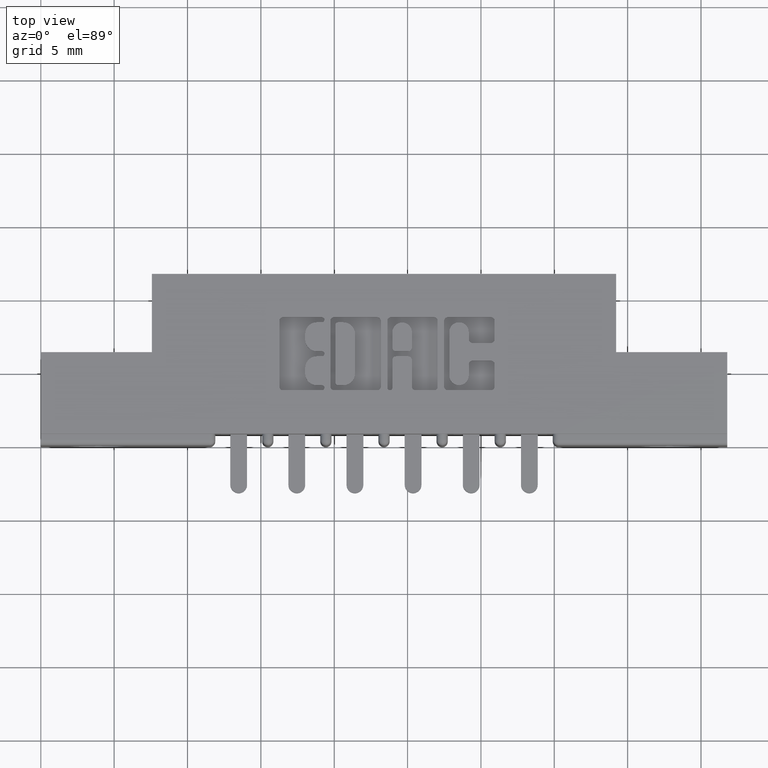
[diagram: clean part render]
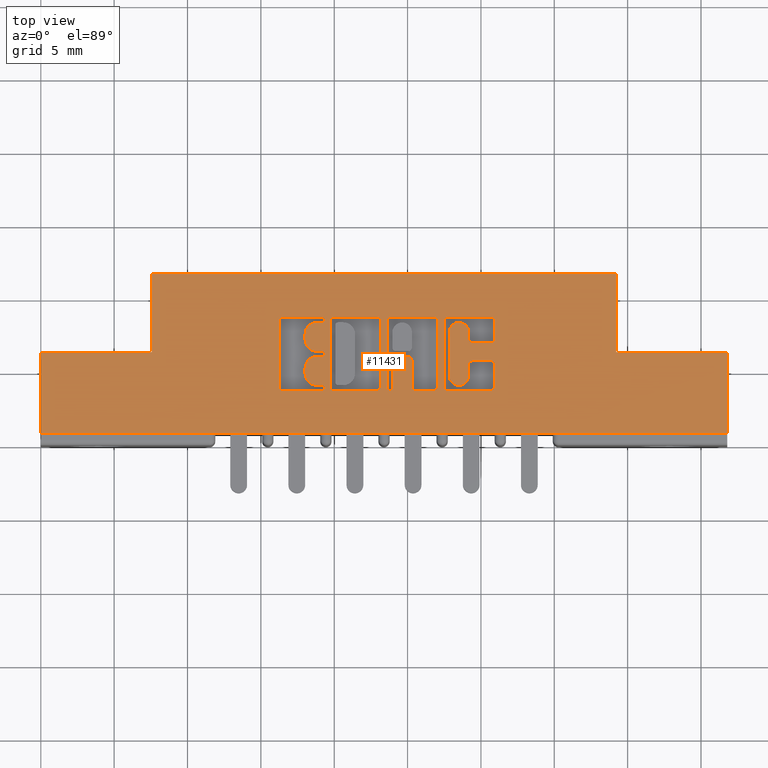
[diagram: same view with one face highlighted and labeled with its STEP entity id]
A machine part, top view. The second image highlights one B-rep face of the part: STEP entity #11431.
In plain terms, the highlighted planar face has unit normal (0, 0, -1).
Its self-contained STEP definition (entity closure, byte-faithful):
#7 = ORIENTED_EDGE ( 'NONE', *, *, #3846, .F. ) ;
#14 = CARTESIAN_POINT ( 'NONE',  ( 0.9295887114283308800, 0.0000000000000000000, 0.0000000000000000000 ) ) ;
#41 = DIRECTION ( 'NONE',  ( 1.000000000000000000, 0.0000000000000000000, 0.0000000000000000000 ) ) ;
#66 = DIRECTION ( 'NONE',  ( -0.0000000000000000000, 0.0000000000000000000, 1.000000000000000000 ) ) ;
#77 = CARTESIAN_POINT ( 'NONE',  ( 1.217678631909940200, 0.0000000000000000000, 0.0000000000000000000 ) ) ;
#79 = CIRCLE ( 'NONE', #5731, 0.006870969142663458500 ) ;
#95 = VERTEX_POINT ( 'NONE', #2452 ) ;
#141 = DIRECTION ( 'NONE',  ( -0.0000000000000000000, 0.0000000000000000000, 1.000000000000000000 ) ) ;
#149 = CIRCLE ( 'NONE', #2220, 0.006870969142657995000 ) ;
#185 = DIRECTION ( 'NONE',  ( -0.0000000000000000000, 1.000000000000000000, -0.0000000000000000000 ) ) ;
#192 = VERTEX_POINT ( 'NONE', #9067 ) ;
#208 = VERTEX_POINT ( 'NONE', #4517 ) ;
#212 = DIRECTION ( 'NONE',  ( -0.0000000000000000000, 0.0000000000000000000, 1.000000000000000000 ) ) ;
#223 = VERTEX_POINT ( 'NONE', #8171 ) ;
#260 = VECTOR ( 'NONE', #8532, 39.37007874015748100 ) ;
#267 = EDGE_CURVE ( 'NONE', #7013, #9898, #10006, .T. ) ;
#281 = LINE ( 'NONE', #7409, #3008 ) ;
#283 = CARTESIAN_POINT ( 'NONE',  ( 1.158293827176977400, 0.2842718973050482000, 0.0000000000000000000 ) ) ;
#286 = EDGE_CURVE ( 'NONE', #2917, #7035, #8710, .T. ) ;
#298 = DIRECTION ( 'NONE',  ( -0.0000000000000000000, 0.0000000000000000000, 1.000000000000000000 ) ) ;
#305 = EDGE_CURVE ( 'NONE', #9968, #3740, #8557, .T. ) ;
#307 = VERTEX_POINT ( 'NONE', #11163 ) ;
#312 = VECTOR ( 'NONE', #2948, 39.37007874015748100 ) ;
#317 = CARTESIAN_POINT ( 'NONE',  ( 0.7867707099630101300, 0.3338410318342131000, 0.0000000000000000000 ) ) ;
#339 = CARTESIAN_POINT ( 'NONE',  ( 1.095964321382818300, 0.1873421540424559900, 0.0000000000000000000 ) ) ;
#346 = CIRCLE ( 'NONE', #8905, 0.009815670203841039800 ) ;
#370 = EDGE_CURVE ( 'NONE', #2585, #5063, #10583, .T. ) ;
#441 = VECTOR ( 'NONE', #8253, 39.37007874015748100 ) ;
#444 = ORIENTED_EDGE ( 'NONE', *, *, #6518, .T. ) ;
#452 = EDGE_CURVE ( 'NONE', #11435, #2830, #1934, .T. ) ;
#453 = AXIS2_PLACEMENT_3D ( 'NONE', #10900, #785, #10939 ) ;
#457 = CARTESIAN_POINT ( 'NONE',  ( 0.7406370600050840000, 0.2386290308573598100, 0.0000000000000000000 ) ) ;
#487 = CARTESIAN_POINT ( 'NONE',  ( 1.217678631909940200, 0.1571589681657859800, 0.0000000000000000000 ) ) ;
#508 = CARTESIAN_POINT ( 'NONE',  ( 0.0000000000000000000, 0.03100000000000000000, 0.0000000000000000000 ) ) ;
#525 = EDGE_CURVE ( 'NONE', #8892, #5458, #1483, .T. ) ;
#558 = CARTESIAN_POINT ( 'NONE',  ( 0.7541336065353355700, 0.1542142671046509700, 0.0000000000000000000 ) ) ;
#559 = DIRECTION ( 'NONE',  ( -0.0000000000000000000, 0.0000000000000000000, 1.000000000000000000 ) ) ;
#564 = EDGE_LOOP ( 'NONE', ( #8621, #444, #7224, #6893, #3497, #11071, #5271, #4146 ) ) ;
#579 = AXIS2_PLACEMENT_3D ( 'NONE', #8164, #9978, #5477 ) ;
#591 = LINE ( 'NONE', #5654, #2455 ) ;
#611 = VECTOR ( 'NONE', #4443, 39.37007874015748100 ) ;
#621 = VECTOR ( 'NONE', #5131, 39.37007874015748100 ) ;
#646 = VECTOR ( 'NONE', #2903, 39.37007874015748100 ) ;
#679 = CARTESIAN_POINT ( 'NONE',  ( 0.0000000000000000000, 0.4600000000000000200, 0.0000000000000000000 ) ) ;
#692 = VECTOR ( 'NONE', #5812, 39.37007874015748100 ) ;
#693 = CARTESIAN_POINT ( 'NONE',  ( 0.2979999999999999900, 0.2500000000000000600, 0.0000000000000000000 ) ) ;
#703 = CARTESIAN_POINT ( 'NONE',  ( 1.092038053301299400, 0.3338410318342131000, 0.0000000000000000000 ) ) ;
#717 = PLANE ( 'NONE',  #6213 ) ;
#785 = DIRECTION ( 'NONE',  ( -0.0000000000000000000, 0.0000000000000000000, 1.000000000000000000 ) ) ;
#793 = ORIENTED_EDGE ( 'NONE', *, *, #1675, .T. ) ;
#814 = ORIENTED_EDGE ( 'NONE', *, *, #5527, .F. ) ;
#894 = EDGE_CURVE ( 'NONE', #1724, #6526, #5961, .T. ) ;
#932 = CARTESIAN_POINT ( 'NONE',  ( 1.148478156973165900, 0.2842718973050482000, 0.0000000000000000000 ) ) ;
#948 = EDGE_CURVE ( 'NONE', #3572, #1386, #11006, .T. ) ;
#949 = VERTEX_POINT ( 'NONE', #9185 ) ;
#973 = CARTESIAN_POINT ( 'NONE',  ( 0.7541336065353100300, 0.2455000000000233400, 0.0000000000000000000 ) ) ;
#986 = DIRECTION ( 'NONE',  ( 1.000000000000000000, 0.0000000000000000000, 0.0000000000000000000 ) ) ;
#1036 = LINE ( 'NONE', #2434, #8802 ) ;
#1050 = CARTESIAN_POINT ( 'NONE',  ( 1.544000000000000300, 0.2500000000000000600, 0.0000000000000000000 ) ) ;
#1058 = LINE ( 'NONE', #7890, #621 ) ;
#1076 = EDGE_CURVE ( 'NONE', #10978, #2389, #8396, .T. ) ;
#1090 = LINE ( 'NONE', #8418, #646 ) ;
#1095 = ORIENTED_EDGE ( 'NONE', *, *, #1076, .F. ) ;
#1118 = DIRECTION ( 'NONE',  ( -0.0000000000000000000, 0.0000000000000000000, 1.000000000000000000 ) ) ;
#1147 = EDGE_CURVE ( 'NONE', #6410, #11435, #5236, .T. ) ;
#1171 = CARTESIAN_POINT ( 'NONE',  ( 0.9025956183678279800, 0.3338410318342129300, 0.0000000000000000000 ) ) ;
#1180 = CARTESIAN_POINT ( 'NONE',  ( 0.0000000000000000000, 0.3436567020380357200, 0.0000000000000000000 ) ) ;
#1198 = VERTEX_POINT ( 'NONE', #8958 ) ;
#1242 = AXIS2_PLACEMENT_3D ( 'NONE', #1659, #4449, #2630 ) ;
#1263 = DIRECTION ( 'NONE',  ( 1.000000000000000000, 0.0000000000000000000, 0.0000000000000000000 ) ) ;
#1274 = CARTESIAN_POINT ( 'NONE',  ( 0.9295887114283308800, 0.1542142671046509700, 0.0000000000000000000 ) ) ;
#1297 = LINE ( 'NONE', #9686, #6927 ) ;
#1312 = ORIENTED_EDGE ( 'NONE', *, *, #9792, .F. ) ;
#1319 = VECTOR ( 'NONE', #2408, 39.37007874015748100 ) ;
#1359 = CARTESIAN_POINT ( 'NONE',  ( 1.122221239177992200, 0.3036578459575325900, 0.0000000000000000000 ) ) ;
#1371 = CARTESIAN_POINT ( 'NONE',  ( 0.9958444853039847300, 0.1571589681657908600, 0.0000000000000000000 ) ) ;
#1386 = VERTEX_POINT ( 'NONE', #8022 ) ;
#1436 = VERTEX_POINT ( 'NONE', #7196 ) ;
#1442 = EDGE_CURVE ( 'NONE', #4220, #2320, #5803, .T. ) ;
#1464 = FACE_OUTER_BOUND ( 'NONE', #564, .T. ) ;
#1483 = LINE ( 'NONE', #11795, #3649 ) ;
#1489 = CARTESIAN_POINT ( 'NONE',  ( 1.095964321382818300, 0.0000000000000000000, 0.0000000000000000000 ) ) ;
#1530 = CARTESIAN_POINT ( 'NONE',  ( 0.9433306497136468800, 0.1542142671046509700, 0.0000000000000000000 ) ) ;
#1532 = CARTESIAN_POINT ( 'NONE',  ( -1.915567620543396700E-014, 0.1610852362472235100, 0.0000000000000000000 ) ) ;
#1543 = VECTOR ( 'NONE', #3708, 39.37007874015748100 ) ;
#1609 = CARTESIAN_POINT ( 'NONE',  ( 0.6400264404161154500, 0.1571589681657929700, 0.0000000000000000000 ) ) ;
#1644 = VERTEX_POINT ( 'NONE', #5499 ) ;
#1659 = CARTESIAN_POINT ( 'NONE',  ( 0.9860288151001878100, 0.2288133606535557900, 0.0000000000000000000 ) ) ;
#1663 = VECTOR ( 'NONE', #5331, 39.37007874015748100 ) ;
#1675 = EDGE_CURVE ( 'NONE', #2348, #7220, #4801, .T. ) ;
#1691 = CIRCLE ( 'NONE', #2460, 0.009815670203804980100 ) ;
#1717 = VERTEX_POINT ( 'NONE', #9414 ) ;
#1724 = VERTEX_POINT ( 'NONE', #8386 ) ;
#1729 = ORIENTED_EDGE ( 'NONE', *, *, #11427, .F. ) ;
#1934 = LINE ( 'NONE', #9624, #9447 ) ;
#1984 = CARTESIAN_POINT ( 'NONE',  ( 1.082222383097458700, 0.0000000000000000000, 0.0000000000000000000 ) ) ;
#1989 = CIRCLE ( 'NONE', #4387, 0.009815670203811535700 ) ;
#2033 = EDGE_CURVE ( 'NONE', #8575, #6577, #9399, .T. ) ;
#2077 = CARTESIAN_POINT ( 'NONE',  ( 0.7406370600051095400, 0.1610852362473115800, 0.0000000000000000000 ) ) ;
#2086 = CARTESIAN_POINT ( 'NONE',  ( 0.7541336065353100300, 0.2455000000000233400, 0.0000000000000000000 ) ) ;
#2114 = CARTESIAN_POINT ( 'NONE',  ( 1.148478156973179000, 0.2170345564089716800, 0.0000000000000000000 ) ) ;
#2127 = DIRECTION ( 'NONE',  ( 1.000000000000000000, 0.0000000000000000000, 0.0000000000000000000 ) ) ;
#2140 = DIRECTION ( 'NONE',  ( 1.000000000000000000, 0.0000000000000000000, 0.0000000000000000000 ) ) ;
#2142 = EDGE_CURVE ( 'NONE', #1644, #2244, #9099, .T. ) ;
#2199 = DIRECTION ( 'NONE',  ( -0.0000000000000000000, 0.0000000000000000000, 1.000000000000000000 ) ) ;
#2220 = AXIS2_PLACEMENT_3D ( 'NONE', #5580, #66, #986 ) ;
#2227 = VECTOR ( 'NONE', #8292, 39.37007874015748100 ) ;
#2244 = VERTEX_POINT ( 'NONE', #10467 ) ;
#2252 = VECTOR ( 'NONE', #185, 39.37007874015748100 ) ;
#2270 = LINE ( 'NONE', #2715, #1543 ) ;
#2320 = VERTEX_POINT ( 'NONE', #6800 ) ;
#2333 = AXIS2_PLACEMENT_3D ( 'NONE', #9392, #3775, #5636 ) ;
#2348 = VERTEX_POINT ( 'NONE', #1274 ) ;
#2360 = AXIS2_PLACEMENT_3D ( 'NONE', #8558, #1118, #1263 ) ;
#2389 = VERTEX_POINT ( 'NONE', #5919 ) ;
#2393 = DIRECTION ( 'NONE',  ( -0.0000000000000000000, 0.0000000000000000000, 1.000000000000000000 ) ) ;
#2408 = DIRECTION ( 'NONE',  ( 1.000000000000000000, 0.0000000000000000000, 0.0000000000000000000 ) ) ;
#2422 = LINE ( 'NONE', #5732, #692 ) ;
#2426 = ORIENTED_EDGE ( 'NONE', *, *, #8911, .T. ) ;
#2434 = CARTESIAN_POINT ( 'NONE',  ( 0.6400264404161154500, 0.0000000000000000000, 0.0000000000000000000 ) ) ;
#2452 = CARTESIAN_POINT ( 'NONE',  ( 0.7610045756779734200, 0.2455000000000233400, 0.0000000000000000000 ) ) ;
#2455 = VECTOR ( 'NONE', #3715, 39.37007874015748100 ) ;
#2460 = AXIS2_PLACEMENT_3D ( 'NONE', #8403, #2887, #3816 ) ;
#2473 = CARTESIAN_POINT ( 'NONE',  ( 1.092038053301265200, 0.1473432979619861700, 0.0000000000000000000 ) ) ;
#2506 = CARTESIAN_POINT ( 'NONE',  ( 0.2979999999999999900, 0.4600000000000000200, 0.0000000000000000000 ) ) ;
#2513 = ORIENTED_EDGE ( 'NONE', *, *, #2840, .F. ) ;
#2514 = DIRECTION ( 'NONE',  ( 0.0000000000000000000, -1.000000000000000000, 0.0000000000000000000 ) ) ;
#2532 = EDGE_CURVE ( 'NONE', #9653, #3152, #8801, .T. ) ;
#2585 = VERTEX_POINT ( 'NONE', #5692 ) ;
#2599 = CARTESIAN_POINT ( 'NONE',  ( -0.0000000000000000000, 0.1473432979619861700, 0.0000000000000000000 ) ) ;
#2603 = ORIENTED_EDGE ( 'NONE', *, *, #11266, .F. ) ;
#2630 = DIRECTION ( 'NONE',  ( 1.000000000000000000, 0.0000000000000000000, 0.0000000000000000000 ) ) ;
#2715 = CARTESIAN_POINT ( 'NONE',  ( 1.148478156973179000, 0.0000000000000000000, 0.0000000000000000000 ) ) ;
#2759 = DIRECTION ( 'NONE',  ( 1.000000000000000000, 0.0000000000000000000, 0.0000000000000000000 ) ) ;
#2779 = ORIENTED_EDGE ( 'NONE', *, *, #5840, .F. ) ;
#2830 = VERTEX_POINT ( 'NONE', #4192 ) ;
#2840 = EDGE_CURVE ( 'NONE', #8463, #6896, #1058, .T. ) ;
#2852 = ORIENTED_EDGE ( 'NONE', *, *, #948, .F. ) ;
#2857 = AXIS2_PLACEMENT_3D ( 'NONE', #703, #9884, #3398 ) ;
#2874 = CARTESIAN_POINT ( 'NONE',  ( 0.7406370600050840000, 0.2837811137948613200, 0.0000000000000000000 ) ) ;
#2885 = AXIS2_PLACEMENT_3D ( 'NONE', #11097, #141, #2759 ) ;
#2887 = DIRECTION ( 'NONE',  ( -0.0000000000000000000, 0.0000000000000000000, 1.000000000000000000 ) ) ;
#2903 = DIRECTION ( 'NONE',  ( 0.0000000000000000000, 1.000000000000000000, -0.0000000000000000000 ) ) ;
#2917 = VERTEX_POINT ( 'NONE', #8668 ) ;
#2946 = DIRECTION ( 'NONE',  ( 1.000000000000000000, 0.0000000000000000000, 0.0000000000000000000 ) ) ;
#2948 = DIRECTION ( 'NONE',  ( -1.000000000000000000, 0.0000000000000000000, 0.0000000000000000000 ) ) ;
#2949 = EDGE_CURVE ( 'NONE', #1198, #5447, #4660, .T. ) ;
#2951 = ORIENTED_EDGE ( 'NONE', *, *, #3744, .F. ) ;
#3008 = VECTOR ( 'NONE', #3527, 39.37007874015748100 ) ;
#3017 = EDGE_CURVE ( 'NONE', #6710, #7459, #7951, .T. ) ;
#3030 = VECTOR ( 'NONE', #6080, 39.37007874015748100 ) ;
#3043 = CARTESIAN_POINT ( 'NONE',  ( 1.055229290037010600, 0.1571589681657838100, 0.0000000000000000000 ) ) ;
#3045 = CARTESIAN_POINT ( 'NONE',  ( 1.544000000000000300, 0.2500000000000000600, 0.0000000000000000000 ) ) ;
#3056 = CARTESIAN_POINT ( 'NONE',  ( 0.9025956183678620600, 0.1571589681657929700, 0.0000000000000000000 ) ) ;
#3105 = VERTEX_POINT ( 'NONE', #5587 ) ;
#3111 = DIRECTION ( 'NONE',  ( -0.0000000000000000000, 0.0000000000000000000, 1.000000000000000000 ) ) ;
#3152 = VERTEX_POINT ( 'NONE', #2114 ) ;
#3188 = EDGE_CURVE ( 'NONE', #4220, #5458, #4211, .T. ) ;
#3208 = ORIENTED_EDGE ( 'NONE', *, *, #2033, .F. ) ;
#3272 = ORIENTED_EDGE ( 'NONE', *, *, #6162, .T. ) ;
#3313 = DIRECTION ( 'NONE',  ( 1.000000000000000000, 0.0000000000000000000, 0.0000000000000000000 ) ) ;
#3321 = CARTESIAN_POINT ( 'NONE',  ( 0.9433306497136468800, 0.2288133606535486000, 0.0000000000000000000 ) ) ;
#3328 = DIRECTION ( 'NONE',  ( -0.0000000000000000000, 0.0000000000000000000, 1.000000000000000000 ) ) ;
#3335 = VERTEX_POINT ( 'NONE', #10036 ) ;
#3338 = VECTOR ( 'NONE', #4409, 39.37007874015748100 ) ;
#3384 = CARTESIAN_POINT ( 'NONE',  ( 0.0000000000000000000, 0.3436567020380540400, 0.0000000000000000000 ) ) ;
#3388 = VERTEX_POINT ( 'NONE', #10075 ) ;
#3398 = DIRECTION ( 'NONE',  ( 1.000000000000000000, 0.0000000000000000000, 0.0000000000000000000 ) ) ;
#3443 = LINE ( 'NONE', #3646, #441 ) ;
#3459 = AXIS2_PLACEMENT_3D ( 'NONE', #9310, #8367, #4684 ) ;
#3494 = AXIS2_PLACEMENT_3D ( 'NONE', #5162, #5043, #10588 ) ;
#3497 = ORIENTED_EDGE ( 'NONE', *, *, #10275, .F. ) ;
#3527 = DIRECTION ( 'NONE',  ( 1.000000000000000000, 0.0000000000000000000, 0.0000000000000000000 ) ) ;
#3540 = VECTOR ( 'NONE', #6664, 39.37007874015748100 ) ;
#3570 = CARTESIAN_POINT ( 'NONE',  ( 0.7541336065353512200, 0.3367857328953892100, 0.0000000000000000000 ) ) ;
#3572 = VERTEX_POINT ( 'NONE', #9480 ) ;
#3635 = EDGE_CURVE ( 'NONE', #6896, #1717, #9681, .T. ) ;
#3636 = VECTOR ( 'NONE', #8080, 39.37007874015748100 ) ;
#3646 = CARTESIAN_POINT ( 'NONE',  ( 0.0000000000000000000, 0.2523709691426868100, 0.0000000000000000000 ) ) ;
#3649 = VECTOR ( 'NONE', #4452, 39.37007874015748100 ) ;
#3663 = CIRCLE ( 'NONE', #1242, 0.009815670203796920600 ) ;
#3684 = CARTESIAN_POINT ( 'NONE',  ( 1.082222383097458700, 0.3338410318342131000, 0.0000000000000000000 ) ) ;
#3696 = DIRECTION ( 'NONE',  ( 0.0000000000000000000, -1.000000000000000000, 0.0000000000000000000 ) ) ;
#3702 = EDGE_CURVE ( 'NONE', #10386, #223, #4494, .T. ) ;
#3705 = CARTESIAN_POINT ( 'NONE',  ( -0.0000000000000000000, 0.2386290308573598100, 0.0000000000000000000 ) ) ;
#3708 = DIRECTION ( 'NONE',  ( 0.0000000000000000000, -1.000000000000000000, 0.0000000000000000000 ) ) ;
#3715 = DIRECTION ( 'NONE',  ( 1.000000000000000000, 0.0000000000000000000, 0.0000000000000000000 ) ) ;
#3736 = EDGE_CURVE ( 'NONE', #9981, #6710, #7793, .T. ) ;
#3740 = VERTEX_POINT ( 'NONE', #2473 ) ;
#3744 = EDGE_CURVE ( 'NONE', #5063, #5298, #1036, .T. ) ;
#3775 = DIRECTION ( 'NONE',  ( -0.0000000000000000000, 0.0000000000000000000, 1.000000000000000000 ) ) ;
#3778 = FACE_BOUND ( 'NONE', #9187, .T. ) ;
#3809 = DIRECTION ( 'NONE',  ( 0.0000000000000000000, 1.000000000000000000, -0.0000000000000000000 ) ) ;
#3816 = DIRECTION ( 'NONE',  ( 1.000000000000000000, 0.0000000000000000000, 0.0000000000000000000 ) ) ;
#3817 = VECTOR ( 'NONE', #8891, 39.37007874015748100 ) ;
#3822 = ORIENTED_EDGE ( 'NONE', *, *, #11414, .F. ) ;
#3846 = EDGE_CURVE ( 'NONE', #8892, #7220, #4063, .T. ) ;
#3847 = VERTEX_POINT ( 'NONE', #7273 ) ;
#3912 = LINE ( 'NONE', #1180, #312 ) ;
#3939 = CARTESIAN_POINT ( 'NONE',  ( 1.544000000000000300, 0.4600000000000000200, 0.0000000000000000000 ) ) ;
#3940 = CARTESIAN_POINT ( 'NONE',  ( 1.148478156973165900, 0.3036578454992628900, 0.0000000000000000000 ) ) ;
#3951 = DIRECTION ( 'NONE',  ( -0.0000000000000000000, 0.0000000000000000000, 1.000000000000000000 ) ) ;
#3972 = EDGE_CURVE ( 'NONE', #1436, #3388, #591, .T. ) ;
#3975 = ORIENTED_EDGE ( 'NONE', *, *, #305, .F. ) ;
#4042 = CARTESIAN_POINT ( 'NONE',  ( 0.7867707099629760400, 0.1571589681657929700, 0.0000000000000000000 ) ) ;
#4063 = CIRCLE ( 'NONE', #453, 0.009815670203796511200 ) ;
#4068 = CARTESIAN_POINT ( 'NONE',  ( 0.7769550397591692400, 0.1571589681657929700, 0.0000000000000000000 ) ) ;
#4076 = VECTOR ( 'NONE', #10294, 39.37007874015748100 ) ;
#4087 = VERTEX_POINT ( 'NONE', #7626 ) ;
#4104 = DIRECTION ( 'NONE',  ( -0.0000000000000000000, -1.000000000000000000, -0.0000000000000000000 ) ) ;
#4116 = ORIENTED_EDGE ( 'NONE', *, *, #525, .T. ) ;
#4142 = EDGE_CURVE ( 'NONE', #1386, #2585, #3912, .T. ) ;
#4144 = VERTEX_POINT ( 'NONE', #10370 ) ;
#4146 = ORIENTED_EDGE ( 'NONE', *, *, #452, .F. ) ;
#4174 = AXIS2_PLACEMENT_3D ( 'NONE', #2874, #6581, #8421 ) ;
#4175 = ORIENTED_EDGE ( 'NONE', *, *, #10154, .F. ) ;
#4192 = CARTESIAN_POINT ( 'NONE',  ( 1.842000000000000100, 0.03100000000000000000, 0.0000000000000000000 ) ) ;
#4202 = CARTESIAN_POINT ( 'NONE',  ( 1.148478156973179000, 0.1873421540424559900, 0.0000000000000000000 ) ) ;
#4211 = CIRCLE ( 'NONE', #2360, 0.009815670203795690700 ) ;
#4214 = CARTESIAN_POINT ( 'NONE',  ( 0.0000000000000000000, 0.1473432979619875800, 0.0000000000000000000 ) ) ;
#4220 = VERTEX_POINT ( 'NONE', #8824 ) ;
#4239 = AXIS2_PLACEMENT_3D ( 'NONE', #3056, #5849, #6739 ) ;
#4250 = ORIENTED_EDGE ( 'NONE', *, *, #11506, .F. ) ;
#4261 = DIRECTION ( 'NONE',  ( 0.0000000000000000000, 0.0000000000000000000, -1.000000000000000000 ) ) ;
#4275 = LINE ( 'NONE', #2599, #8596 ) ;
#4294 = EDGE_CURVE ( 'NONE', #2830, #7035, #1297, .T. ) ;
#4387 = AXIS2_PLACEMENT_3D ( 'NONE', #283, #4839, #11246 ) ;
#4409 = DIRECTION ( 'NONE',  ( 0.0000000000000000000, -1.000000000000000000, 0.0000000000000000000 ) ) ;
#4443 = DIRECTION ( 'NONE',  ( -1.000000000000000000, 0.0000000000000000000, 0.0000000000000000000 ) ) ;
#4449 = DIRECTION ( 'NONE',  ( -0.0000000000000000000, 0.0000000000000000000, 1.000000000000000000 ) ) ;
#4452 = DIRECTION ( 'NONE',  ( 1.000000000000000000, 0.0000000000000000000, 0.0000000000000000000 ) ) ;
#4494 = CIRCLE ( 'NONE', #5841, 0.009815670203787086500 ) ;
#4517 = CARTESIAN_POINT ( 'NONE',  ( 1.055229290037010600, 0.1473432979619875800, 0.0000000000000000000 ) ) ;
#4520 = AXIS2_PLACEMENT_3D ( 'NONE', #317, #3111, #11399 ) ;
#4660 = LINE ( 'NONE', #3384, #611 ) ;
#4684 = DIRECTION ( 'NONE',  ( 1.000000000000000000, 0.0000000000000000000, 0.0000000000000000000 ) ) ;
#4727 = VERTEX_POINT ( 'NONE', #10827 ) ;
#4801 = LINE ( 'NONE', #14, #8970 ) ;
#4807 = CARTESIAN_POINT ( 'NONE',  ( 1.005660155507788000, 0.1571589681657908600, 0.0000000000000000000 ) ) ;
#4835 = EDGE_CURVE ( 'NONE', #8430, #4087, #3443, .T. ) ;
#4839 = DIRECTION ( 'NONE',  ( -0.0000000000000000000, 0.0000000000000000000, 1.000000000000000000 ) ) ;
#4842 = EDGE_CURVE ( 'NONE', #3847, #9668, #281, .T. ) ;
#4873 = CARTESIAN_POINT ( 'NONE',  ( 0.9958444853039847300, 0.0000000000000000000, 0.0000000000000000000 ) ) ;
#4917 = ORIENTED_EDGE ( 'NONE', *, *, #4842, .F. ) ;
#4923 = LINE ( 'NONE', #6673, #11114 ) ;
#4938 = DIRECTION ( 'NONE',  ( 1.000000000000000000, 0.0000000000000000000, 0.0000000000000000000 ) ) ;
#4939 = CARTESIAN_POINT ( 'NONE',  ( 0.9394043816321274700, 0.3436567020380095800, 0.0000000000000000000 ) ) ;
#4995 = ORIENTED_EDGE ( 'NONE', *, *, #2532, .F. ) ;
#5030 = ORIENTED_EDGE ( 'NONE', *, *, #1442, .T. ) ;
#5038 = DIRECTION ( 'NONE',  ( 1.000000000000000000, 0.0000000000000000000, 0.0000000000000000000 ) ) ;
#5043 = DIRECTION ( 'NONE',  ( -0.0000000000000000000, 0.0000000000000000000, 1.000000000000000000 ) ) ;
#5046 = EDGE_CURVE ( 'NONE', #5298, #8463, #10211, .T. ) ;
#5050 = AXIS2_PLACEMENT_3D ( 'NONE', #3570, #6368, #11853 ) ;
#5063 = VERTEX_POINT ( 'NONE', #6747 ) ;
#5131 = DIRECTION ( 'NONE',  ( 1.000000000000000000, 6.876017002796124400E-015, 0.0000000000000000000 ) ) ;
#5147 = ORIENTED_EDGE ( 'NONE', *, *, #9498, .F. ) ;
#5154 = CARTESIAN_POINT ( 'NONE',  ( 0.6498421106199185900, 0.1473432979619879700, 0.0000000000000000000 ) ) ;
#5162 = CARTESIAN_POINT ( 'NONE',  ( 0.7541336065353512200, 0.3367857328953892100, 0.0000000000000000000 ) ) ;
#5210 = CARTESIAN_POINT ( 'NONE',  ( 1.217678631909972200, 0.0000000000000000000, 0.0000000000000000000 ) ) ;
#5236 = LINE ( 'NONE', #8290, #9559 ) ;
#5271 = ORIENTED_EDGE ( 'NONE', *, *, #4294, .F. ) ;
#5279 = DIRECTION ( 'NONE',  ( -0.0000000000000000000, 0.0000000000000000000, 1.000000000000000000 ) ) ;
#5280 = ORIENTED_EDGE ( 'NONE', *, *, #11219, .F. ) ;
#5298 = VERTEX_POINT ( 'NONE', #1609 ) ;
#5307 = ORIENTED_EDGE ( 'NONE', *, *, #9048, .T. ) ;
#5331 = DIRECTION ( 'NONE',  ( 0.0000000000000000000, 1.000000000000000000, -0.0000000000000000000 ) ) ;
#5447 = VERTEX_POINT ( 'NONE', #8276 ) ;
#5458 = VERTEX_POINT ( 'NONE', #11916 ) ;
#5477 = DIRECTION ( 'NONE',  ( 1.000000000000000000, 0.0000000000000000000, 0.0000000000000000000 ) ) ;
#5499 = CARTESIAN_POINT ( 'NONE',  ( 0.7406370600051254100, 0.3299147637527386500, 0.0000000000000000000 ) ) ;
#5527 = EDGE_CURVE ( 'NONE', #2348, #7459, #149, .T. ) ;
#5580 = CARTESIAN_POINT ( 'NONE',  ( 0.9364596805709870500, 0.1542142671046509700, 0.0000000000000000000 ) ) ;
#5587 = CARTESIAN_POINT ( 'NONE',  ( 0.7541336064153888500, 0.2386290308573598100, 0.0000000000000000000 ) ) ;
#5590 = ORIENTED_EDGE ( 'NONE', *, *, #370, .F. ) ;
#5597 = DIRECTION ( 'NONE',  ( -0.0000000000000000000, -1.000000000000000000, -0.0000000000000000000 ) ) ;
#5601 = DIRECTION ( 'NONE',  ( -0.0000000000000000000, 0.0000000000000000000, 1.000000000000000000 ) ) ;
#5636 = DIRECTION ( 'NONE',  ( 1.000000000000000000, 0.0000000000000000000, 0.0000000000000000000 ) ) ;
#5640 = CARTESIAN_POINT ( 'NONE',  ( 0.7406370600051254100, 0.2985046191005228400, 0.0000000000000000000 ) ) ;
#5646 = ORIENTED_EDGE ( 'NONE', *, *, #3635, .F. ) ;
#5654 = CARTESIAN_POINT ( 'NONE',  ( -0.0000000000000000000, 0.1473432979619861700, 0.0000000000000000000 ) ) ;
#5657 = AXIS2_PLACEMENT_3D ( 'NONE', #7090, #5279, #7136 ) ;
#5662 = CIRCLE ( 'NONE', #9890, 0.009815670203796237100 ) ;
#5686 = VECTOR ( 'NONE', #5597, 39.37007874015748100 ) ;
#5691 = CARTESIAN_POINT ( 'NONE',  ( 0.2979999999999999900, 0.2500000000000000600, 0.0000000000000000000 ) ) ;
#5692 = CARTESIAN_POINT ( 'NONE',  ( 0.6498421106199380200, 0.3436567020380357200, 0.0000000000000000000 ) ) ;
#5703 = LINE ( 'NONE', #3705, #7285 ) ;
#5713 = ORIENTED_EDGE ( 'NONE', *, *, #10048, .F. ) ;
#5731 = AXIS2_PLACEMENT_3D ( 'NONE', #973, #5601, #8495 ) ;
#5732 = CARTESIAN_POINT ( 'NONE',  ( 0.0000000000000000000, 0.3436567020380540400, 0.0000000000000000000 ) ) ;
#5785 = LINE ( 'NONE', #4873, #3030 ) ;
#5803 = LINE ( 'NONE', #8104, #3338 ) ;
#5812 = DIRECTION ( 'NONE',  ( -1.000000000000000000, 0.0000000000000000000, 0.0000000000000000000 ) ) ;
#5823 = EDGE_CURVE ( 'NONE', #6312, #11929, #9650, .T. ) ;
#5840 = EDGE_CURVE ( 'NONE', #9590, #11402, #9366, .T. ) ;
#5841 = AXIS2_PLACEMENT_3D ( 'NONE', #6795, #2199, #10494 ) ;
#5844 = DIRECTION ( 'NONE',  ( -0.0000000000000000000, 0.0000000000000000000, 1.000000000000000000 ) ) ;
#5849 = DIRECTION ( 'NONE',  ( -0.0000000000000000000, 0.0000000000000000000, 1.000000000000000000 ) ) ;
#5874 = CARTESIAN_POINT ( 'NONE',  ( 0.7541336065353100300, 0.2523709691426868100, 0.0000000000000000000 ) ) ;
#5879 = ORIENTED_EDGE ( 'NONE', *, *, #6136, .F. ) ;
#5883 = VERTEX_POINT ( 'NONE', #2506 ) ;
#5904 = VERTEX_POINT ( 'NONE', #11872 ) ;
#5919 = CARTESIAN_POINT ( 'NONE',  ( 1.207862961706168200, 0.3436567020380540400, 0.0000000000000000000 ) ) ;
#5935 = ORIENTED_EDGE ( 'NONE', *, *, #8828, .F. ) ;
#5953 = FACE_BOUND ( 'NONE', #11004, .T. ) ;
#5961 = CIRCLE ( 'NONE', #5657, 0.009815670203806345400 ) ;
#6010 = EDGE_CURVE ( 'NONE', #3152, #9181, #2270, .T. ) ;
#6016 = LINE ( 'NONE', #11264, #3540 ) ;
#6080 = DIRECTION ( 'NONE',  ( 0.0000000000000000000, 1.000000000000000000, -0.0000000000000000000 ) ) ;
#6095 = AXIS2_PLACEMENT_3D ( 'NONE', #10447, #11391, #4938 ) ;
#6134 = VERTEX_POINT ( 'NONE', #9371 ) ;
#6136 = EDGE_CURVE ( 'NONE', #2389, #10381, #2422, .T. ) ;
#6162 = EDGE_CURVE ( 'NONE', #9590, #9181, #11076, .T. ) ;
#6163 = CARTESIAN_POINT ( 'NONE',  ( 1.217678631909940200, 0.2170345564089734300, 0.0000000000000000000 ) ) ;
#6203 = DIRECTION ( 'NONE',  ( -1.000000000000000000, 0.0000000000000000000, 0.0000000000000000000 ) ) ;
#6208 = ORIENTED_EDGE ( 'NONE', *, *, #4835, .F. ) ;
#6213 = AXIS2_PLACEMENT_3D ( 'NONE', #679, #4261, #7133 ) ;
#6231 = CARTESIAN_POINT ( 'NONE',  ( 0.9295887114283308800, 0.3338410318342131000, 0.0000000000000000000 ) ) ;
#6239 = LINE ( 'NONE', #7046, #1319 ) ;
#6279 = ORIENTED_EDGE ( 'NONE', *, *, #6777, .T. ) ;
#6306 = DIRECTION ( 'NONE',  ( -1.000000000000000000, -1.189163988687022500E-013, 0.0000000000000000000 ) ) ;
#6312 = VERTEX_POINT ( 'NONE', #9864 ) ;
#6319 = CARTESIAN_POINT ( 'NONE',  ( -8.177847276076924400E-015, 0.2386290308573189900, 0.0000000000000000000 ) ) ;
#6339 = AXIS2_PLACEMENT_3D ( 'NONE', #558, #7992, #10699 ) ;
#6368 = DIRECTION ( 'NONE',  ( -0.0000000000000000000, 0.0000000000000000000, 1.000000000000000000 ) ) ;
#6410 = VERTEX_POINT ( 'NONE', #3045 ) ;
#6423 = CIRCLE ( 'NONE', #8812, 0.009815670203803340800 ) ;
#6430 = ORIENTED_EDGE ( 'NONE', *, *, #7219, .F. ) ;
#6436 = CIRCLE ( 'NONE', #7134, 0.009815670203806754800 ) ;
#6448 = EDGE_CURVE ( 'NONE', #9898, #3847, #1989, .T. ) ;
#6499 = CARTESIAN_POINT ( 'NONE',  ( 0.7769550397591692400, 0.0000000000000000000, 0.0000000000000000000 ) ) ;
#6518 = EDGE_CURVE ( 'NONE', #6410, #11826, #9352, .T. ) ;
#6526 = VERTEX_POINT ( 'NONE', #487 ) ;
#6569 = ORIENTED_EDGE ( 'NONE', *, *, #3188, .F. ) ;
#6577 = VERTEX_POINT ( 'NONE', #4068 ) ;
#6581 = DIRECTION ( 'NONE',  ( -0.0000000000000000000, 0.0000000000000000000, 1.000000000000000000 ) ) ;
#6582 = AXIS2_PLACEMENT_3D ( 'NONE', #2086, #7722, #2127 ) ;
#6596 = CIRCLE ( 'NONE', #6339, 0.006870969142662229500 ) ;
#6646 = CARTESIAN_POINT ( 'NONE',  ( 0.7541336064154143800, 0.1473432979619887000, 0.0000000000000000000 ) ) ;
#6651 = VERTEX_POINT ( 'NONE', #11610 ) ;
#6664 = DIRECTION ( 'NONE',  ( 1.000000000000000000, 0.0000000000000000000, 0.0000000000000000000 ) ) ;
#6673 = CARTESIAN_POINT ( 'NONE',  ( 0.7092269153529278100, 0.0000000000000000000, 0.0000000000000000000 ) ) ;
#6680 = EDGE_CURVE ( 'NONE', #208, #6771, #9625, .T. ) ;
#6696 = EDGE_CURVE ( 'NONE', #1717, #6312, #6596, .T. ) ;
#6710 = VERTEX_POINT ( 'NONE', #3321 ) ;
#6730 = DIRECTION ( 'NONE',  ( 1.000000000000000000, 0.0000000000000000000, 0.0000000000000000000 ) ) ;
#6739 = DIRECTION ( 'NONE',  ( 1.000000000000000000, 0.0000000000000000000, 0.0000000000000000000 ) ) ;
#6747 = CARTESIAN_POINT ( 'NONE',  ( 0.6400264404161154500, 0.3338410318342131000, 0.0000000000000000000 ) ) ;
#6771 = VERTEX_POINT ( 'NONE', #7448 ) ;
#6777 = EDGE_CURVE ( 'NONE', #5904, #9981, #10192, .T. ) ;
#6784 = ORIENTED_EDGE ( 'NONE', *, *, #9016, .T. ) ;
#6795 = CARTESIAN_POINT ( 'NONE',  ( 1.207862961706153100, 0.2170345564089734300, 0.0000000000000000000 ) ) ;
#6800 = CARTESIAN_POINT ( 'NONE',  ( 1.065044960240806700, 0.1571589681657838100, 0.0000000000000000000 ) ) ;
#6805 = VECTOR ( 'NONE', #10293, 39.37007874015748100 ) ;
#6822 = EDGE_CURVE ( 'NONE', #9668, #192, #1691, .T. ) ;
#6877 = VECTOR ( 'NONE', #11155, 39.37007874015748100 ) ;
#6893 = ORIENTED_EDGE ( 'NONE', *, *, #9420, .F. ) ;
#6896 = VERTEX_POINT ( 'NONE', #6646 ) ;
#6927 = VECTOR ( 'NONE', #11553, 39.37007874015748100 ) ;
#7010 = ORIENTED_EDGE ( 'NONE', *, *, #9390, .F. ) ;
#7013 = VERTEX_POINT ( 'NONE', #3940 ) ;
#7035 = VERTEX_POINT ( 'NONE', #508 ) ;
#7041 = CARTESIAN_POINT ( 'NONE',  ( 0.7406370600050840000, 0.2072188862052035400, 0.0000000000000000000 ) ) ;
#7046 = CARTESIAN_POINT ( 'NONE',  ( -0.0000000000000000000, 0.3299147637527386500, 0.0000000000000000000 ) ) ;
#7086 = CARTESIAN_POINT ( 'NONE',  ( 0.7092269153529094900, 0.0000000000000000000, 0.0000000000000000000 ) ) ;
#7090 = CARTESIAN_POINT ( 'NONE',  ( 1.207862961706134300, 0.1571589681657929700, 0.0000000000000000000 ) ) ;
#7133 = DIRECTION ( 'NONE',  ( -1.000000000000000000, 0.0000000000000000000, -0.0000000000000000000 ) ) ;
#7134 = AXIS2_PLACEMENT_3D ( 'NONE', #4042, #9519, #2946 ) ;
#7136 = DIRECTION ( 'NONE',  ( 1.000000000000000000, 0.0000000000000000000, 0.0000000000000000000 ) ) ;
#7196 = CARTESIAN_POINT ( 'NONE',  ( 0.7867707099629760400, 0.1473432979619861700, 0.0000000000000000000 ) ) ;
#7202 = VECTOR ( 'NONE', #10764, 39.37007874015748100 ) ;
#7219 = EDGE_CURVE ( 'NONE', #10381, #11630, #8449, .T. ) ;
#7220 = VERTEX_POINT ( 'NONE', #6231 ) ;
#7224 = ORIENTED_EDGE ( 'NONE', *, *, #9599, .F. ) ;
#7273 = CARTESIAN_POINT ( 'NONE',  ( 1.158293827176977400, 0.2744562271012366300, 0.0000000000000000000 ) ) ;
#7285 = VECTOR ( 'NONE', #10155, 39.37007874015748100 ) ;
#7359 = ORIENTED_EDGE ( 'NONE', *, *, #7748, .F. ) ;
#7382 = CIRCLE ( 'NONE', #4520, 0.009815670203840902800 ) ;
#7409 = CARTESIAN_POINT ( 'NONE',  ( -0.0000000000000000000, 0.2744562271012366300, 0.0000000000000000000 ) ) ;
#7439 = LINE ( 'NONE', #5210, #1663 ) ;
#7443 = ORIENTED_EDGE ( 'NONE', *, *, #3702, .F. ) ;
#7444 = ORIENTED_EDGE ( 'NONE', *, *, #3017, .T. ) ;
#7448 = CARTESIAN_POINT ( 'NONE',  ( 1.005660155507785800, 0.1473432979619875800, 0.0000000000000000000 ) ) ;
#7459 = VERTEX_POINT ( 'NONE', #1530 ) ;
#7510 = ORIENTED_EDGE ( 'NONE', *, *, #267, .F. ) ;
#7577 = ORIENTED_EDGE ( 'NONE', *, *, #3972, .F. ) ;
#7612 = DIRECTION ( 'NONE',  ( 1.000000000000000000, 0.0000000000000000000, 0.0000000000000000000 ) ) ;
#7626 = CARTESIAN_POINT ( 'NONE',  ( 0.7406370600050840000, 0.2523709691426868100, 0.0000000000000000000 ) ) ;
#7658 = CARTESIAN_POINT ( 'NONE',  ( 1.122221239177998700, 0.1873421540424559900, 0.0000000000000000000 ) ) ;
#7681 = EDGE_CURVE ( 'NONE', #7856, #3105, #5703, .T. ) ;
#7702 = EDGE_CURVE ( 'NONE', #3388, #6651, #9158, .T. ) ;
#7722 = DIRECTION ( 'NONE',  ( -0.0000000000000000000, 0.0000000000000000000, 1.000000000000000000 ) ) ;
#7748 = EDGE_CURVE ( 'NONE', #6651, #6134, #1090, .T. ) ;
#7793 = CIRCLE ( 'NONE', #8930, 0.009815670203803203800 ) ;
#7815 = CIRCLE ( 'NONE', #10531, 0.02625691779517367100 ) ;
#7831 = CARTESIAN_POINT ( 'NONE',  ( 0.0000000000000000000, 0.2500000000000000600, 0.0000000000000000000 ) ) ;
#7856 = VERTEX_POINT ( 'NONE', #457 ) ;
#7890 = CARTESIAN_POINT ( 'NONE',  ( -1.013135022034653900E-015, 0.1473432979619835000, 0.0000000000000000000 ) ) ;
#7911 = CARTESIAN_POINT ( 'NONE',  ( 0.9531463199174502500, 0.2288133606535486000, 0.0000000000000000000 ) ) ;
#7951 = LINE ( 'NONE', #9259, #6805 ) ;
#7955 = FACE_BOUND ( 'NONE', #10911, .T. ) ;
#7964 = ORIENTED_EDGE ( 'NONE', *, *, #4142, .F. ) ;
#7992 = DIRECTION ( 'NONE',  ( -0.0000000000000000000, 0.0000000000000000000, 1.000000000000000000 ) ) ;
#8022 = CARTESIAN_POINT ( 'NONE',  ( 0.7541336065353512200, 0.3436567020380357200, 0.0000000000000000000 ) ) ;
#8037 = CARTESIAN_POINT ( 'NONE',  ( 1.842000000000000100, 0.2500000000000000600, 0.0000000000000000000 ) ) ;
#8067 = ORIENTED_EDGE ( 'NONE', *, *, #11593, .T. ) ;
#8080 = DIRECTION ( 'NONE',  ( 0.0000000000000000000, 1.000000000000000000, -0.0000000000000000000 ) ) ;
#8104 = CARTESIAN_POINT ( 'NONE',  ( 1.065044960240806700, 0.0000000000000000000, 0.0000000000000000000 ) ) ;
#8110 = CARTESIAN_POINT ( 'NONE',  ( 0.7769550397591692400, 0.3338410318342131000, 0.0000000000000000000 ) ) ;
#8164 = CARTESIAN_POINT ( 'NONE',  ( 0.7406370600051095400, 0.1924953808994933600, 0.0000000000000000000 ) ) ;
#8171 = CARTESIAN_POINT ( 'NONE',  ( 1.207862961706156700, 0.2268502266127605200, 0.0000000000000000000 ) ) ;
#8253 = DIRECTION ( 'NONE',  ( -1.000000000000000000, 0.0000000000000000000, 0.0000000000000000000 ) ) ;
#8276 = CARTESIAN_POINT ( 'NONE',  ( 0.7867707099630101300, 0.3436567020380540400, 0.0000000000000000000 ) ) ;
#8290 = CARTESIAN_POINT ( 'NONE',  ( 1.842000000000000100, 0.2500000000000000600, 0.0000000000000000000 ) ) ;
#8292 = DIRECTION ( 'NONE',  ( 0.0000000000000000000, -1.000000000000000000, 0.0000000000000000000 ) ) ;
#8296 = CARTESIAN_POINT ( 'NONE',  ( 1.082222383097458700, 0.1571589681657929700, 0.0000000000000000000 ) ) ;
#8367 = DIRECTION ( 'NONE',  ( -0.0000000000000000000, 0.0000000000000000000, 1.000000000000000000 ) ) ;
#8386 = CARTESIAN_POINT ( 'NONE',  ( 1.207862961706134300, 0.1473432979619861700, 0.0000000000000000000 ) ) ;
#8396 = CIRCLE ( 'NONE', #2333, 0.009815670203840084000 ) ;
#8403 = CARTESIAN_POINT ( 'NONE',  ( 1.207862961706167100, 0.2842718973050416500, 0.0000000000000000000 ) ) ;
#8407 = AXIS2_PLACEMENT_3D ( 'NONE', #9704, #8691, #5038 ) ;
#8418 = CARTESIAN_POINT ( 'NONE',  ( 0.9124112885716689800, 0.0000000000000000000, 0.0000000000000000000 ) ) ;
#8421 = DIRECTION ( 'NONE',  ( 1.000000000000000000, 0.0000000000000000000, 0.0000000000000000000 ) ) ;
#8430 = VERTEX_POINT ( 'NONE', #5874 ) ;
#8449 = CIRCLE ( 'NONE', #2857, 0.009815670203840902800 ) ;
#8463 = VERTEX_POINT ( 'NONE', #5154 ) ;
#8467 = ORIENTED_EDGE ( 'NONE', *, *, #5823, .F. ) ;
#8488 = DIRECTION ( 'NONE',  ( 1.000000000000000000, -0.0000000000000000000, -0.0000000000000000000 ) ) ;
#8495 = DIRECTION ( 'NONE',  ( 1.000000000000000000, 0.0000000000000000000, 0.0000000000000000000 ) ) ;
#8532 = DIRECTION ( 'NONE',  ( -0.0000000000000000000, 1.000000000000000000, -0.0000000000000000000 ) ) ;
#8557 = CIRCLE ( 'NONE', #3459, 0.009815670203806754800 ) ;
#8558 = CARTESIAN_POINT ( 'NONE',  ( 1.055229290037011500, 0.3338410318342133800, 0.0000000000000000000 ) ) ;
#8575 = VERTEX_POINT ( 'NONE', #8110 ) ;
#8596 = VECTOR ( 'NONE', #10935, 39.37007874015748100 ) ;
#8621 = ORIENTED_EDGE ( 'NONE', *, *, #1147, .F. ) ;
#8657 = DIRECTION ( 'NONE',  ( -0.0000000000000000000, 0.0000000000000000000, 1.000000000000000000 ) ) ;
#8667 = CARTESIAN_POINT ( 'NONE',  ( 1.207862961706167100, 0.2744562271012366300, 0.0000000000000000000 ) ) ;
#8668 = CARTESIAN_POINT ( 'NONE',  ( 0.0000000000000000000, 0.2500000000000000600, 0.0000000000000000000 ) ) ;
#8682 = VECTOR ( 'NONE', #6203, 39.37007874015748100 ) ;
#8691 = DIRECTION ( 'NONE',  ( -0.0000000000000000000, 0.0000000000000000000, 1.000000000000000000 ) ) ;
#8710 = LINE ( 'NONE', #9144, #5686 ) ;
#8801 = CIRCLE ( 'NONE', #2885, 0.009815670203788042300 ) ;
#8802 = VECTOR ( 'NONE', #2514, 39.37007874015748100 ) ;
#8812 = AXIS2_PLACEMENT_3D ( 'NONE', #4807, #212, #41 ) ;
#8824 = CARTESIAN_POINT ( 'NONE',  ( 1.065044960240806700, 0.3338410318342039900, 0.0000000000000000000 ) ) ;
#8828 = EDGE_CURVE ( 'NONE', #307, #4144, #4923, .T. ) ;
#8848 = DIRECTION ( 'NONE',  ( 1.000000000000000000, 0.0000000000000000000, 0.0000000000000000000 ) ) ;
#8854 = CARTESIAN_POINT ( 'NONE',  ( 0.7541336065353355700, 0.1542142671046509700, 0.0000000000000000000 ) ) ;
#8887 = CIRCLE ( 'NONE', #10972, 0.03141014465215624000 ) ;
#8891 = DIRECTION ( 'NONE',  ( 1.000000000000000000, 0.0000000000000000000, 0.0000000000000000000 ) ) ;
#8892 = VERTEX_POINT ( 'NONE', #4939 ) ;
#8905 = AXIS2_PLACEMENT_3D ( 'NONE', #1171, #5844, #7612 ) ;
#8911 = EDGE_CURVE ( 'NONE', #949, #5904, #3663, .T. ) ;
#8930 = AXIS2_PLACEMENT_3D ( 'NONE', #7911, #2393, #3313 ) ;
#8932 = VERTEX_POINT ( 'NONE', #693 ) ;
#8942 = EDGE_CURVE ( 'NONE', #4727, #4087, #9206, .T. ) ;
#8958 = CARTESIAN_POINT ( 'NONE',  ( 0.9025956183678961500, 0.3436567020380540400, 0.0000000000000000000 ) ) ;
#8970 = VECTOR ( 'NONE', #9087, 39.37007874015748100 ) ;
#8974 = LINE ( 'NONE', #77, #4076 ) ;
#8990 = CIRCLE ( 'NONE', #3494, 0.006870969142648570200 ) ;
#9003 = EDGE_CURVE ( 'NONE', #208, #2320, #5662, .T. ) ;
#9013 = CIRCLE ( 'NONE', #6582, 0.006870969142663458500 ) ;
#9016 = EDGE_CURVE ( 'NONE', #9699, #949, #5785, .T. ) ;
#9045 = VECTOR ( 'NONE', #9854, 39.37007874015748100 ) ;
#9048 = EDGE_CURVE ( 'NONE', #7856, #4144, #8887, .T. ) ;
#9053 = ORIENTED_EDGE ( 'NONE', *, *, #2142, .T. ) ;
#9057 = ORIENTED_EDGE ( 'NONE', *, *, #9341, .F. ) ;
#9067 = CARTESIAN_POINT ( 'NONE',  ( 1.217678631909972200, 0.2842718973050416500, 0.0000000000000000000 ) ) ;
#9087 = DIRECTION ( 'NONE',  ( 0.0000000000000000000, 1.000000000000000000, -0.0000000000000000000 ) ) ;
#9099 = CIRCLE ( 'NONE', #10527, 0.03141014465221592800 ) ;
#9104 = ORIENTED_EDGE ( 'NONE', *, *, #6696, .F. ) ;
#9144 = CARTESIAN_POINT ( 'NONE',  ( 0.0000000000000000000, 0.4600000000000000200, 0.0000000000000000000 ) ) ;
#9158 = CIRCLE ( 'NONE', #4239, 0.009815670203806891800 ) ;
#9181 = VERTEX_POINT ( 'NONE', #4202 ) ;
#9185 = CARTESIAN_POINT ( 'NONE',  ( 0.9958444853039847300, 0.2288133606535464300, 0.0000000000000000000 ) ) ;
#9187 = EDGE_LOOP ( 'NONE', ( #5280, #7359, #11445, #7577, #5147, #3208, #10513, #9322 ) ) ;
#9206 = CIRCLE ( 'NONE', #4174, 0.03141014465217454400 ) ;
#9259 = CARTESIAN_POINT ( 'NONE',  ( 0.9433306497136468800, 0.0000000000000000000, 0.0000000000000000000 ) ) ;
#9304 = LINE ( 'NONE', #7831, #3817 ) ;
#9310 = CARTESIAN_POINT ( 'NONE',  ( 1.092038053301265200, 0.1571589681657929700, 0.0000000000000000000 ) ) ;
#9322 = ORIENTED_EDGE ( 'NONE', *, *, #2949, .F. ) ;
#9332 = LINE ( 'NONE', #1984, #11042 ) ;
#9341 = EDGE_CURVE ( 'NONE', #3740, #1724, #4275, .T. ) ;
#9352 = LINE ( 'NONE', #1050, #260 ) ;
#9366 = LINE ( 'NONE', #1489, #7202 ) ;
#9371 = CARTESIAN_POINT ( 'NONE',  ( 0.9124112885716689800, 0.3338410318342131000, 0.0000000000000000000 ) ) ;
#9390 = EDGE_CURVE ( 'NONE', #11630, #9968, #9332, .T. ) ;
#9392 = CARTESIAN_POINT ( 'NONE',  ( 1.207862961706132100, 0.3338410318342139900, 0.0000000000000000000 ) ) ;
#9399 = LINE ( 'NONE', #6499, #11421 ) ;
#9414 = CARTESIAN_POINT ( 'NONE',  ( 0.7610045756779977300, 0.1542142671046509700, 0.0000000000000000000 ) ) ;
#9420 = EDGE_CURVE ( 'NONE', #8932, #5883, #10032, .T. ) ;
#9447 = VECTOR ( 'NONE', #4104, 39.37007874015748100 ) ;
#9480 = CARTESIAN_POINT ( 'NONE',  ( 0.7610045756779998400, 0.3367857328953892100, 0.0000000000000000000 ) ) ;
#9498 = EDGE_CURVE ( 'NONE', #6577, #1436, #6436, .T. ) ;
#9519 = DIRECTION ( 'NONE',  ( -0.0000000000000000000, 0.0000000000000000000, 1.000000000000000000 ) ) ;
#9559 = VECTOR ( 'NONE', #8488, 39.37007874015748100 ) ;
#9570 = EDGE_LOOP ( 'NONE', ( #4116, #6569, #5030, #11226, #11375, #9604, #6784, #2426, #6279, #11672, #7444, #814, #793, #7 ) ) ;
#9590 = VERTEX_POINT ( 'NONE', #339 ) ;
#9599 = EDGE_CURVE ( 'NONE', #5883, #11826, #6016, .T. ) ;
#9604 = ORIENTED_EDGE ( 'NONE', *, *, #10086, .F. ) ;
#9624 = CARTESIAN_POINT ( 'NONE',  ( 1.842000000000000100, 0.4600000000000000200, 0.0000000000000000000 ) ) ;
#9625 = LINE ( 'NONE', #4214, #9045 ) ;
#9639 = ORIENTED_EDGE ( 'NONE', *, *, #894, .F. ) ;
#9650 = LINE ( 'NONE', #1532, #10792 ) ;
#9653 = VERTEX_POINT ( 'NONE', #11469 ) ;
#9668 = VERTEX_POINT ( 'NONE', #8667 ) ;
#9681 = CIRCLE ( 'NONE', #11650, 0.006870969142662229500 ) ;
#9686 = CARTESIAN_POINT ( 'NONE',  ( 1.842000000000000100, 0.03100000000000000000, 0.0000000000000000000 ) ) ;
#9699 = VERTEX_POINT ( 'NONE', #1371 ) ;
#9704 = CARTESIAN_POINT ( 'NONE',  ( 0.6498421106199380200, 0.3338410318342131000, 0.0000000000000000000 ) ) ;
#9706 = DIRECTION ( 'NONE',  ( 1.000000000000000000, 0.0000000000000000000, 0.0000000000000000000 ) ) ;
#9785 = CARTESIAN_POINT ( 'NONE',  ( 1.095964321382818300, 0.3036578459575325900, 0.0000000000000000000 ) ) ;
#9787 = DIRECTION ( 'NONE',  ( 1.000000000000000000, 0.0000000000000000000, 0.0000000000000000000 ) ) ;
#9792 = EDGE_CURVE ( 'NONE', #192, #10978, #7439, .T. ) ;
#9854 = DIRECTION ( 'NONE',  ( -1.000000000000000000, 0.0000000000000000000, 0.0000000000000000000 ) ) ;
#9864 = CARTESIAN_POINT ( 'NONE',  ( 0.7541336064154143800, 0.1610852362473131900, 0.0000000000000000000 ) ) ;
#9884 = DIRECTION ( 'NONE',  ( -0.0000000000000000000, 0.0000000000000000000, 1.000000000000000000 ) ) ;
#9890 = AXIS2_PLACEMENT_3D ( 'NONE', #3043, #559, #9706 ) ;
#9898 = VERTEX_POINT ( 'NONE', #932 ) ;
#9968 = VERTEX_POINT ( 'NONE', #8296 ) ;
#9975 = LINE ( 'NONE', #7086, #3636 ) ;
#9978 = DIRECTION ( 'NONE',  ( -0.0000000000000000000, 0.0000000000000000000, 1.000000000000000000 ) ) ;
#9981 = VERTEX_POINT ( 'NONE', #10069 ) ;
#9996 = CARTESIAN_POINT ( 'NONE',  ( 1.217678631909972200, 0.3338410318341977800, 0.0000000000000000000 ) ) ;
#10006 = LINE ( 'NONE', #10106, #2227 ) ;
#10032 = LINE ( 'NONE', #5691, #2252 ) ;
#10036 = CARTESIAN_POINT ( 'NONE',  ( 0.7541336065353513300, 0.3299147637527386500, 0.0000000000000000000 ) ) ;
#10038 = ORIENTED_EDGE ( 'NONE', *, *, #11720, .F. ) ;
#10048 = EDGE_CURVE ( 'NONE', #3105, #95, #79, .T. ) ;
#10069 = CARTESIAN_POINT ( 'NONE',  ( 0.9531463199174502500, 0.2386290308573516500, 0.0000000000000000000 ) ) ;
#10075 = CARTESIAN_POINT ( 'NONE',  ( 0.9025956183678620600, 0.1473432979619861700, 0.0000000000000000000 ) ) ;
#10086 = EDGE_CURVE ( 'NONE', #9699, #6771, #6423, .T. ) ;
#10106 = CARTESIAN_POINT ( 'NONE',  ( 1.148478156973165900, 0.0000000000000000000, 0.0000000000000000000 ) ) ;
#10127 = LINE ( 'NONE', #11738, #8682 ) ;
#10154 = EDGE_CURVE ( 'NONE', #95, #8430, #9013, .T. ) ;
#10155 = DIRECTION ( 'NONE',  ( 1.000000000000000000, 0.0000000000000000000, 0.0000000000000000000 ) ) ;
#10192 = LINE ( 'NONE', #6319, #6877 ) ;
#10211 = CIRCLE ( 'NONE', #6095, 0.009815670203805936000 ) ;
#10275 = EDGE_CURVE ( 'NONE', #2917, #8932, #9304, .T. ) ;
#10293 = DIRECTION ( 'NONE',  ( 0.0000000000000000000, -1.000000000000000000, 0.0000000000000000000 ) ) ;
#10294 = DIRECTION ( 'NONE',  ( 0.0000000000000000000, 1.000000000000000000, -0.0000000000000000000 ) ) ;
#10370 = CARTESIAN_POINT ( 'NONE',  ( 0.7092269153529278100, 0.2072188862052035400, 0.0000000000000000000 ) ) ;
#10381 = VERTEX_POINT ( 'NONE', #11807 ) ;
#10386 = VERTEX_POINT ( 'NONE', #6163 ) ;
#10447 = CARTESIAN_POINT ( 'NONE',  ( 0.6498421106199221400, 0.1571589681657929700, 0.0000000000000000000 ) ) ;
#10467 = CARTESIAN_POINT ( 'NONE',  ( 0.7092269153529094900, 0.2985046191005228400, 0.0000000000000000000 ) ) ;
#10487 = ORIENTED_EDGE ( 'NONE', *, *, #6010, .F. ) ;
#10494 = DIRECTION ( 'NONE',  ( 1.000000000000000000, 0.0000000000000000000, 0.0000000000000000000 ) ) ;
#10510 = DIRECTION ( 'NONE',  ( 1.000000000000000000, 0.0000000000000000000, 0.0000000000000000000 ) ) ;
#10513 = ORIENTED_EDGE ( 'NONE', *, *, #11803, .F. ) ;
#10527 = AXIS2_PLACEMENT_3D ( 'NONE', #5640, #3951, #6730 ) ;
#10531 = AXIS2_PLACEMENT_3D ( 'NONE', #1359, #8657, #10510 ) ;
#10550 = FACE_BOUND ( 'NONE', #9570, .T. ) ;
#10583 = CIRCLE ( 'NONE', #8407, 0.009815670203822599700 ) ;
#10588 = DIRECTION ( 'NONE',  ( 1.000000000000000000, 0.0000000000000000000, 0.0000000000000000000 ) ) ;
#10592 = ORIENTED_EDGE ( 'NONE', *, *, #7681, .F. ) ;
#10699 = DIRECTION ( 'NONE',  ( 1.000000000000000000, 0.0000000000000000000, 0.0000000000000000000 ) ) ;
#10701 = CIRCLE ( 'NONE', #579, 0.03141014465218178200 ) ;
#10764 = DIRECTION ( 'NONE',  ( 0.0000000000000000000, 1.000000000000000000, -0.0000000000000000000 ) ) ;
#10790 = AXIS2_PLACEMENT_3D ( 'NONE', #7658, #298, #2140 ) ;
#10792 = VECTOR ( 'NONE', #6306, 39.37007874015748100 ) ;
#10798 = ORIENTED_EDGE ( 'NONE', *, *, #5046, .F. ) ;
#10827 = CARTESIAN_POINT ( 'NONE',  ( 0.7092269153529094900, 0.2837811137948613200, 0.0000000000000000000 ) ) ;
#10900 = CARTESIAN_POINT ( 'NONE',  ( 0.9394043816321274700, 0.3338410318342131000, 0.0000000000000000000 ) ) ;
#10911 = EDGE_LOOP ( 'NONE', ( #11647, #4917, #11840, #7510, #11773, #2779, #3272, #10487, #4995, #3822, #7443, #10038, #9639, #9057, #3975, #7010, #6430, #5879, #1095, #1312 ) ) ;
#10935 = DIRECTION ( 'NONE',  ( 1.000000000000000000, 0.0000000000000000000, 0.0000000000000000000 ) ) ;
#10939 = DIRECTION ( 'NONE',  ( 1.000000000000000000, 0.0000000000000000000, 0.0000000000000000000 ) ) ;
#10972 = AXIS2_PLACEMENT_3D ( 'NONE', #7041, #11326, #8848 ) ;
#10978 = VERTEX_POINT ( 'NONE', #9996 ) ;
#11004 = EDGE_LOOP ( 'NONE', ( #9053, #4250, #11834, #6208, #4175, #5713, #10592, #5307, #5935, #8067, #8467, #9104, #5646, #2513, #10798, #2951, #5590, #7964, #2852, #2603, #1729 ) ) ;
#11006 = CIRCLE ( 'NONE', #5050, 0.006870969142648570200 ) ;
#11042 = VECTOR ( 'NONE', #11181, 39.37007874015748100 ) ;
#11071 = ORIENTED_EDGE ( 'NONE', *, *, #286, .T. ) ;
#11076 = CIRCLE ( 'NONE', #10790, 0.02625691779518022500 ) ;
#11097 = CARTESIAN_POINT ( 'NONE',  ( 1.158293827176966900, 0.2170345564089725400, 0.0000000000000000000 ) ) ;
#11114 = VECTOR ( 'NONE', #3809, 39.37007874015748100 ) ;
#11155 = DIRECTION ( 'NONE',  ( -1.000000000000000000, -3.427012734660361200E-014, 0.0000000000000000000 ) ) ;
#11163 = CARTESIAN_POINT ( 'NONE',  ( 0.7092269153529278100, 0.1924953808994933600, 0.0000000000000000000 ) ) ;
#11181 = DIRECTION ( 'NONE',  ( 0.0000000000000000000, -1.000000000000000000, 0.0000000000000000000 ) ) ;
#11219 = EDGE_CURVE ( 'NONE', #6134, #1198, #346, .T. ) ;
#11226 = ORIENTED_EDGE ( 'NONE', *, *, #9003, .F. ) ;
#11246 = DIRECTION ( 'NONE',  ( 1.000000000000000000, 0.0000000000000000000, 0.0000000000000000000 ) ) ;
#11264 = CARTESIAN_POINT ( 'NONE',  ( 0.0000000000000000000, 0.4600000000000000200, 0.0000000000000000000 ) ) ;
#11266 = EDGE_CURVE ( 'NONE', #3335, #3572, #8990, .T. ) ;
#11318 = EDGE_CURVE ( 'NONE', #7013, #11402, #7815, .T. ) ;
#11326 = DIRECTION ( 'NONE',  ( -0.0000000000000000000, 0.0000000000000000000, 1.000000000000000000 ) ) ;
#11375 = ORIENTED_EDGE ( 'NONE', *, *, #6680, .T. ) ;
#11391 = DIRECTION ( 'NONE',  ( -0.0000000000000000000, 0.0000000000000000000, 1.000000000000000000 ) ) ;
#11399 = DIRECTION ( 'NONE',  ( 1.000000000000000000, 0.0000000000000000000, 0.0000000000000000000 ) ) ;
#11402 = VERTEX_POINT ( 'NONE', #9785 ) ;
#11414 = EDGE_CURVE ( 'NONE', #223, #9653, #10127, .T. ) ;
#11421 = VECTOR ( 'NONE', #3696, 39.37007874015748100 ) ;
#11427 = EDGE_CURVE ( 'NONE', #1644, #3335, #6239, .T. ) ;
#11431 = ADVANCED_FACE ( 'NONE', ( #7955, #5953, #1464, #3778, #10550 ), #717, .F. ) ;
#11435 = VERTEX_POINT ( 'NONE', #8037 ) ;
#11445 = ORIENTED_EDGE ( 'NONE', *, *, #7702, .F. ) ;
#11469 = CARTESIAN_POINT ( 'NONE',  ( 1.158293827176966900, 0.2268502266127605200, 0.0000000000000000000 ) ) ;
#11506 = EDGE_CURVE ( 'NONE', #4727, #2244, #9975, .T. ) ;
#11553 = DIRECTION ( 'NONE',  ( -1.000000000000000000, -0.0000000000000000000, -0.0000000000000000000 ) ) ;
#11593 = EDGE_CURVE ( 'NONE', #307, #11929, #10701, .T. ) ;
#11610 = CARTESIAN_POINT ( 'NONE',  ( 0.9124112885716689800, 0.1571589681657929700, 0.0000000000000000000 ) ) ;
#11630 = VERTEX_POINT ( 'NONE', #3684 ) ;
#11647 = ORIENTED_EDGE ( 'NONE', *, *, #6822, .F. ) ;
#11650 = AXIS2_PLACEMENT_3D ( 'NONE', #8854, #3328, #9787 ) ;
#11672 = ORIENTED_EDGE ( 'NONE', *, *, #3736, .T. ) ;
#11720 = EDGE_CURVE ( 'NONE', #6526, #10386, #8974, .T. ) ;
#11738 = CARTESIAN_POINT ( 'NONE',  ( 0.0000000000000000000, 0.2268502266127605200, 0.0000000000000000000 ) ) ;
#11773 = ORIENTED_EDGE ( 'NONE', *, *, #11318, .T. ) ;
#11795 = CARTESIAN_POINT ( 'NONE',  ( -0.0000000000000000000, 0.3436567020380095800, 0.0000000000000000000 ) ) ;
#11803 = EDGE_CURVE ( 'NONE', #5447, #8575, #7382, .T. ) ;
#11807 = CARTESIAN_POINT ( 'NONE',  ( 1.092038053301299400, 0.3436567020380540400, 0.0000000000000000000 ) ) ;
#11826 = VERTEX_POINT ( 'NONE', #3939 ) ;
#11834 = ORIENTED_EDGE ( 'NONE', *, *, #8942, .T. ) ;
#11840 = ORIENTED_EDGE ( 'NONE', *, *, #6448, .F. ) ;
#11853 = DIRECTION ( 'NONE',  ( 1.000000000000000000, 0.0000000000000000000, 0.0000000000000000000 ) ) ;
#11872 = CARTESIAN_POINT ( 'NONE',  ( 0.9860288151001881400, 0.2386290308573527900, 0.0000000000000000000 ) ) ;
#11916 = CARTESIAN_POINT ( 'NONE',  ( 1.055229290037013900, 0.3436567020380095800, 0.0000000000000000000 ) ) ;
#11929 = VERTEX_POINT ( 'NONE', #2077 ) ;